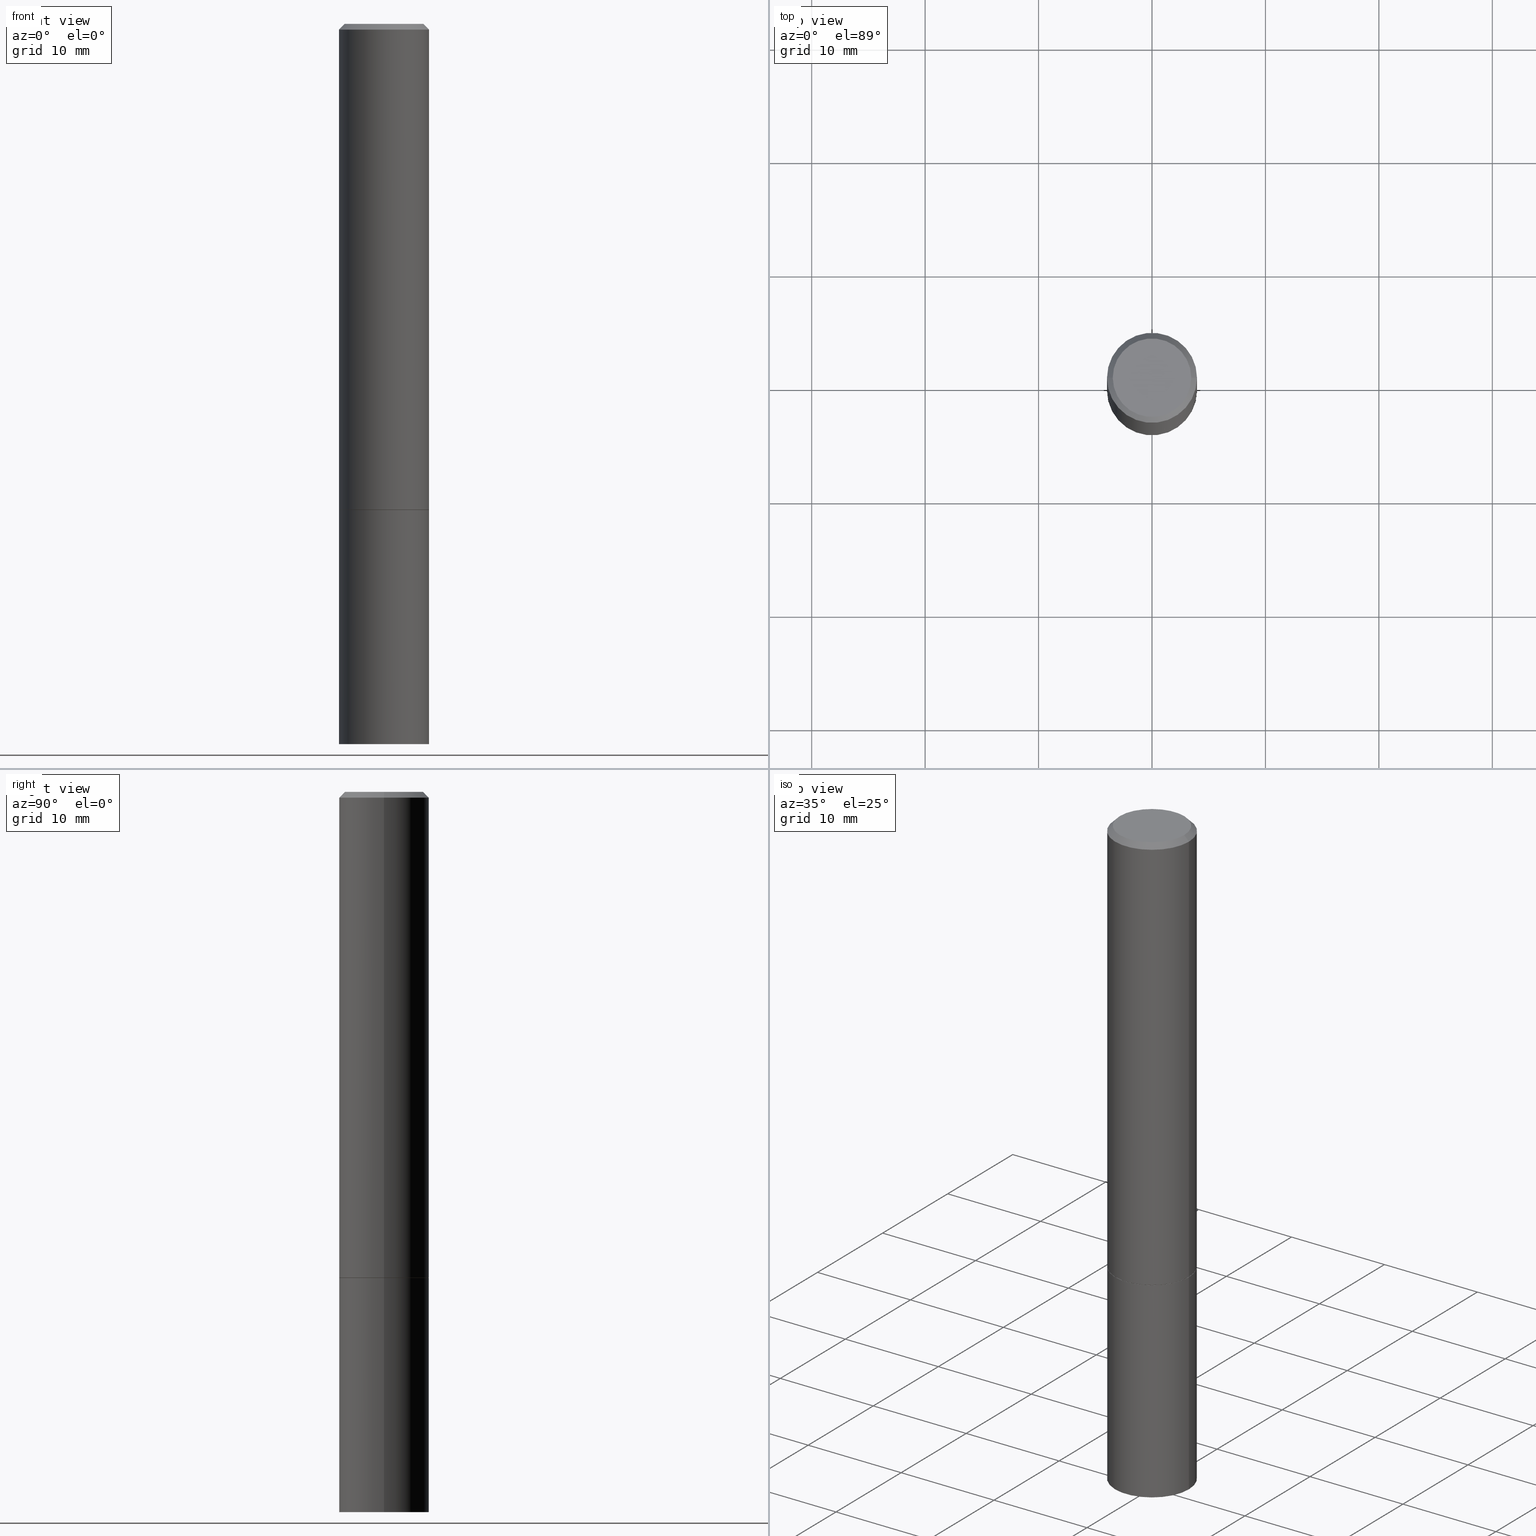
[diagram: canonical four-view strip — front | top / right | iso, engineering-drawing reading convention]
A machine part, canonical four-view strip (front | top / right | iso — engineering-drawing reading convention). The complete STEP part file that produces these views, byte-faithful:
ISO-10303-21;
HEADER;
FILE_DESCRIPTION (( 'STEP AP203' ),
    '1' );
FILE_NAME ('34623.STEP',
    '2024-02-27T16:28:29',
    ( '' ),
    ( '' ),
    'SwSTEP 2.0',
    'SolidWorks 2023',
    '' );
FILE_SCHEMA (( 'CONFIG_CONTROL_DESIGN' ));
ENDSEC;

DATA;
#1 = PLANE ( 'NONE',  #237 ) ;
#2 = CONICAL_SURFACE ( 'NONE', #49, 0.1562499999999998057, 0.7853981633974472798 ) ;
#3 = AXIS2_PLACEMENT_3D ( 'NONE', #284, #254, #226 ) ;
#4 = VERTEX_POINT ( 'NONE', #307 ) ;
#5 = CARTESIAN_POINT ( 'NONE',  ( -0.1562500000000000000, -6.200066028577678771E-15, -1.687500000000000000 ) ) ;
#6 = DATE_AND_TIME ( #28, #50 ) ;
#7 = COORDINATED_UNIVERSAL_TIME_OFFSET ( 5, 0, .BEHIND. ) ;
#8 = PERSON_AND_ORGANIZATION ( #256, #56 ) ;
#9 = ADVANCED_BREP_SHAPE_REPRESENTATION ( '34623', ( #267, #138, #89 ), #208 ) ;
#10 = PERSON_AND_ORGANIZATION_ROLE ( 'design_supplier' ) ;
#11 = DIMENSIONAL_EXPONENTS ( 1.000000000000000000, 0.000000000000000000, 0.000000000000000000, 0.000000000000000000, 0.000000000000000000, 0.000000000000000000, 0.000000000000000000 ) ;
#12 = CARTESIAN_POINT ( 'NONE',  ( 0.000000000000000000, 0.000000000000000000, 0.000000000000000000 ) ) ;
#13 = AXIS2_PLACEMENT_3D ( 'NONE', #220, #76, #190 ) ;
#14 = CARTESIAN_POINT ( 'NONE',  ( 4.890937612370281041E-31, -6.982962677686302702E-17, -0.02000000000000003511 ) ) ;
#15 = FACE_OUTER_BOUND ( 'NONE', #325, .T. ) ;
#16 = VERTEX_POINT ( 'NONE', #183 ) ;
#17 = CALENDAR_DATE ( 2024, 27, 2 ) ;
#18 = DIRECTION ( 'NONE',  ( -0.7071067811865467956, 2.468850131082249172E-15, -0.7071067811865482389 ) ) ;
#19 = DIRECTION ( 'NONE',  ( -2.445468806185136597E-29, 3.491481338843145583E-15, 1.000000000000000000 ) ) ;
#20 = CARTESIAN_POINT ( 'NONE',  ( -0.1552499999999999991, -4.788757162030252515E-15, -1.687500000000000000 ) ) ;
#21 = CIRCLE ( 'NONE', #3, 0.1362499999999998157 ) ;
#22 = LINE ( 'NONE', #20, #223 ) ;
#23 = ORIENTED_EDGE ( 'NONE', *, *, #174, .F. ) ;
#24 = ORIENTED_EDGE ( 'NONE', *, *, #174, .T. ) ;
#25 = DIRECTION ( 'NONE',  ( -2.445468806185136597E-29, 3.491481338843145583E-15, 1.000000000000000000 ) ) ;
#26 = ORIENTED_EDGE ( 'NONE', *, *, #277, .F. ) ;
#27 = ORIENTED_EDGE ( 'NONE', *, *, #34, .F. ) ;
#28 = CALENDAR_DATE ( 2024, 27, 2 ) ;
#29 = VERTEX_POINT ( 'NONE', #214 ) ;
#30 = CIRCLE ( 'NONE', #290, 0.1562500000000000000 ) ;
#31 = PLANE ( 'NONE',  #81 ) ;
#32 = PERSON_AND_ORGANIZATION_ROLE ( 'creator' ) ;
#33 = ADVANCED_FACE ( 'NONE', ( #238 ), #189, .F. ) ;
#34 = EDGE_CURVE ( 'NONE', #29, #54, #100, .T. ) ;
#35 = APPROVAL_PERSON_ORGANIZATION ( #235, #264, #288 ) ;
#36 = PERSON_AND_ORGANIZATION ( #256, #56 ) ;
#37 = CARTESIAN_POINT ( 'NONE',  ( -0.1562499999999998057, 1.021258291611614692E-15, -0.02000000000000003511 ) ) ;
#38 = CARTESIAN_POINT ( 'NONE',  ( 0.1562500000000000000, -6.979471196347444214E-15, -1.686499999999999888 ) ) ;
#39 = DIRECTION ( 'NONE',  ( -2.445468806185136597E-29, 3.491481338843145583E-15, 1.000000000000000000 ) ) ;
#40 = ORIENTED_EDGE ( 'NONE', *, *, #247, .T. ) ;
#41 = APPROVAL_ROLE ( '' ) ;
#42 = DIRECTION ( 'NONE',  ( -1.000000000000000000, 6.982962677686266711E-15, 0.000000000000000000 ) ) ;
#43 = LINE ( 'NONE', #75, #207 ) ;
#44 = ORIENTED_EDGE ( 'NONE', *, *, #250, .F. ) ;
#45 = CARTESIAN_POINT ( 'NONE',  ( -0.1562499999999998057, 1.021258291611614692E-15, -0.02000000000000003511 ) ) ;
#46 = DIRECTION ( 'NONE',  ( 1.000000000000000000, -6.982962677686269077E-15, 0.000000000000000000 ) ) ;
#47 = PRODUCT_RELATED_PRODUCT_CATEGORY ( 'detail', '', ( #234 ) ) ;
#48 = DIRECTION ( 'NONE',  ( -1.000000000000000000, 6.982962677686265922E-15, -4.876176775795935793E-29 ) ) ;
#49 = AXIS2_PLACEMENT_3D ( 'NONE', #14, #240, #42 ) ;
#50 = LOCAL_TIME ( 11, 28, 29.00000000000000000, #178 ) ;
#51 = ORIENTED_EDGE ( 'NONE', *, *, #200, .T. ) ;
#52 = EDGE_CURVE ( 'NONE', #355, #305, #340, .T. ) ;
#53 = CARTESIAN_POINT ( 'NONE',  ( -0.1562500000000000000, -6.200066028577678771E-15, -2.500000000000000000 ) ) ;
#54 = VERTEX_POINT ( 'NONE', #45 ) ;
#55 = EDGE_LOOP ( 'NONE', ( #260, #329 ) ) ;
#56 = ORGANIZATION ( 'UNSPECIFIED', 'UNSPECIFIED', '' ) ;
#57 = ORIENTED_EDGE ( 'NONE', *, *, #257, .F. ) ;
#58 = CC_DESIGN_PERSON_AND_ORGANIZATION_ASSIGNMENT ( #8, #118, ( #234 ) ) ;
#59 = DIRECTION ( 'NONE',  ( -1.000000000000000000, 6.982962677686266711E-15, 0.000000000000000000 ) ) ;
#60 = ORIENTED_EDGE ( 'NONE', *, *, #201, .F. ) ;
#61 = CIRCLE ( 'NONE', #310, 0.1562500000000000000 ) ;
#62 = LOCAL_TIME ( 11, 28, 29.00000000000000000, #157 ) ;
#63 = PERSON_AND_ORGANIZATION ( #256, #56 ) ;
#64 = VECTOR ( 'NONE', #219, 39.37007874015748143 ) ;
#65 = APPROVAL_PERSON_ORGANIZATION ( #120, #114, #41 ) ;
#66 = EDGE_CURVE ( 'NONE', #191, #54, #357, .T. ) ;
#67 = EDGE_LOOP ( 'NONE', ( #127, #175, #112, #242 ) ) ;
#68 = PERSON_AND_ORGANIZATION ( #256, #56 ) ;
#69 = ADVANCED_FACE ( 'NONE', ( #359 ), #93, .T. ) ;
#70 = CARTESIAN_POINT ( 'NONE',  ( 0.000000000000000000, 0.000000000000000000, 0.000000000000000000 ) ) ;
#71 = DIRECTION ( 'NONE',  ( 1.000000000000000000, -6.982962677686265133E-15, 4.876176775795935232E-29 ) ) ;
#72 = CIRCLE ( 'NONE', #113, 0.1562500000000000000 ) ;
#73 = AXIS2_PLACEMENT_3D ( 'NONE', #193, #25, #227 ) ;
#74 = DIRECTION ( 'NONE',  ( -2.445468806185136597E-29, 3.491481338843145583E-15, 1.000000000000000000 ) ) ;
#75 = CARTESIAN_POINT ( 'NONE',  ( 0.1552499999999999991, -6.975979715008601207E-15, -1.687500000000000000 ) ) ;
#76 = DIRECTION ( 'NONE',  ( -2.445468806185136597E-29, 3.491481338843145583E-15, 1.000000000000000000 ) ) ;
#77 = EDGE_CURVE ( 'NONE', #156, #83, #72, .T. ) ;
#78 = CARTESIAN_POINT ( 'NONE',  ( -0.1562499999999999167, 1.110223024625155949E-15, -7.685836078523285555E-30 ) ) ;
#79 = EDGE_LOOP ( 'NONE', ( #224, #230, #316, #116 ) ) ;
#80 = AXIS2_PLACEMENT_3D ( 'NONE', #303, #209, #121 ) ;
#81 = AXIS2_PLACEMENT_3D ( 'NONE', #344, #205, #346 ) ;
#82 = DIRECTION ( 'NONE',  ( -2.445468806185136877E-29, 3.491481338843145188E-15, 1.000000000000000000 ) ) ;
#83 = VERTEX_POINT ( 'NONE', #161 ) ;
#84 = CARTESIAN_POINT ( 'NONE',  ( 9.514286648347523799E-16, 0.1362499999999998157, -4.757143324173778663E-16 ) ) ;
#85 = ORIENTED_EDGE ( 'NONE', *, *, #99, .F. ) ;
#86 = MECHANICAL_CONTEXT ( 'NONE', #182, 'mechanical' ) ;
#87 = APPLICATION_PROTOCOL_DEFINITION ( 'international standard', 'config_control_design', 1994, #182 ) ;
#88 = AXIS2_PLACEMENT_3D ( 'NONE', #70, #298, #218 ) ;
#89 = AXIS2_PLACEMENT_3D ( 'NONE', #176, #115, #294 ) ;
#90 = DATE_TIME_ROLE ( 'creation_date' ) ;
#91 = ORIENTED_EDGE ( 'NONE', *, *, #52, .F. ) ;
#92 = AXIS2_PLACEMENT_3D ( 'NONE', #308, #360, #126 ) ;
#93 = CYLINDRICAL_SURFACE ( 'NONE', #88, 0.1562499999999999167 ) ;
#94 = COORDINATED_UNIVERSAL_TIME_OFFSET ( 5, 0, .BEHIND. ) ;
#95 = FACE_OUTER_BOUND ( 'NONE', #338, .T. ) ;
#96 = DATE_AND_TIME ( #351, #345 ) ;
#97 = DIRECTION ( 'NONE',  ( 1.000000000000000000, -6.982962677686269077E-15, 0.000000000000000000 ) ) ;
#98 = DIRECTION ( 'NONE',  ( 1.000000000000000000, -6.982962677686266711E-15, 4.876176775795936353E-29 ) ) ;
#99 = EDGE_CURVE ( 'NONE', #54, #191, #134, .T. ) ;
#100 = LINE ( 'NONE', #37, #295 ) ;
#101 = LINE ( 'NONE', #279, #228 ) ;
#102 = CIRCLE ( 'NONE', #314, 0.1552499999999999991 ) ;
#103 = CC_DESIGN_APPROVAL ( #169, ( #197 ) ) ;
#104 = CC_DESIGN_DATE_AND_TIME_ASSIGNMENT ( #184, #301, ( #122 ) ) ;
#105 = DIRECTION ( 'NONE',  ( -2.445468806185136597E-29, 3.491481338843145583E-15, 1.000000000000000000 ) ) ;
#106 = EDGE_LOOP ( 'NONE', ( #287, #216, #335, #110 ) ) ;
#107 = LINE ( 'NONE', #337, #181 ) ;
#108 = CLOSED_SHELL ( 'NONE', ( #117, #361, #33, #206 ) ) ;
#109 = ORIENTED_EDGE ( 'NONE', *, *, #77, .F. ) ;
#110 = ORIENTED_EDGE ( 'NONE', *, *, #137, .F. ) ;
#111 = FACE_OUTER_BOUND ( 'NONE', #255, .T. ) ;
#112 = ORIENTED_EDGE ( 'NONE', *, *, #34, .T. ) ;
#113 = AXIS2_PLACEMENT_3D ( 'NONE', #185, #327, #150 ) ;
#114 = APPROVAL ( #271, 'UNSPECIFIED' ) ;
#115 = DIRECTION ( 'NONE',  ( 0.000000000000000000, 0.000000000000000000, 1.000000000000000000 ) ) ;
#116 = ORIENTED_EDGE ( 'NONE', *, *, #297, .F. ) ;
#117 = ADVANCED_FACE ( 'NONE', ( #95 ), #125, .T. ) ;
#118 = PERSON_AND_ORGANIZATION_ROLE ( 'design_owner' ) ;
#119 = CALENDAR_DATE ( 2024, 27, 2 ) ;
#120 = PERSON_AND_ORGANIZATION ( #256, #56 ) ;
#121 = DIRECTION ( 'NONE',  ( 1.000000000000000000, -6.982962677686265133E-15, 0.000000000000000000 ) ) ;
#122 = SECURITY_CLASSIFICATION ( '', '', #330 ) ;
#123 = FACE_OUTER_BOUND ( 'NONE', #79, .T. ) ;
#124 = EDGE_LOOP ( 'NONE', ( #23, #44 ) ) ;
#125 = CYLINDRICAL_SURFACE ( 'NONE', #160, 0.1562500000000000000 ) ;
#126 = DIRECTION ( 'NONE',  ( 1.000000000000000000, -6.982962677686268288E-15, 0.000000000000000000 ) ) ;
#127 = ORIENTED_EDGE ( 'NONE', *, *, #200, .F. ) ;
#128 = DATE_AND_TIME ( #17, #62 ) ;
#129 = ADVANCED_FACE ( 'NONE', ( #155 ), #2, .T. ) ;
#130 = DIRECTION ( 'NONE',  ( -0.7071067811865232589, 7.493145998870265808E-15, 0.7071067811865715536 ) ) ;
#131 = AXIS2_PLACEMENT_3D ( 'NONE', #141, #258, #59 ) ;
#132 = CARTESIAN_POINT ( 'NONE',  ( 0.1562499999999998057, -1.141782438928663330E-15, -0.02000000000000003511 ) ) ;
#133 = ORIENTED_EDGE ( 'NONE', *, *, #262, .F. ) ;
#134 = CIRCLE ( 'NONE', #80, 0.1562499999999998057 ) ;
#135 = DIRECTION ( 'NONE',  ( -2.445468806185136877E-29, 3.491481338843145188E-15, 1.000000000000000000 ) ) ;
#136 = ORIENTED_EDGE ( 'NONE', *, *, #250, .T. ) ;
#137 = EDGE_CURVE ( 'NONE', #365, #16, #153, .T. ) ;
#138 = MANIFOLD_SOLID_BREP ( 'Body-Move/Copy2[2]', #192 ) ;
#139 = VERTEX_POINT ( 'NONE', #273 ) ;
#140 = FACE_OUTER_BOUND ( 'NONE', #124, .T. ) ;
#141 = CARTESIAN_POINT ( 'NONE',  ( 4.890937612370281041E-31, -6.982962677686302702E-17, -0.02000000000000003511 ) ) ;
#142 = ORIENTED_EDGE ( 'NONE', *, *, #212, .F. ) ;
#143 = AXIS2_PLACEMENT_3D ( 'NONE', #251, #19, #188 ) ;
#144 = CARTESIAN_POINT ( 'NONE',  ( 4.126728610437418007E-29, -5.891874759297807259E-15, -1.687500000000000000 ) ) ;
#145 =( LENGTH_UNIT ( ) NAMED_UNIT ( * ) SI_UNIT ( $, .METRE. ) );
#146 = CARTESIAN_POINT ( 'NONE',  ( -0.1562500000000000000, 1.110223024625156540E-15, -7.685836078523291160E-30 ) ) ;
#147 = APPROVAL_STATUS ( 'not_yet_approved' ) ;
#148 = PERSON_AND_ORGANIZATION_ROLE ( 'classification_officer' ) ;
#149 = EDGE_CURVE ( 'NONE', #305, #365, #249, .T. ) ;
#150 = DIRECTION ( 'NONE',  ( 1.000000000000000000, -6.982962677686269077E-15, 0.000000000000000000 ) ) ;
#151 = CYLINDRICAL_SURFACE ( 'NONE', #364, 0.1562500000000000000 ) ;
#152 = APPROVAL_DATE_TIME ( #96, #169 ) ;
#153 = CIRCLE ( 'NONE', #180, 0.1562500000000000000 ) ;
#154 = APPROVAL_PERSON_ORGANIZATION ( #326, #169, #300 ) ;
#155 = FACE_OUTER_BOUND ( 'NONE', #67, .T. ) ;
#156 = VERTEX_POINT ( 'NONE', #38 ) ;
#157 = COORDINATED_UNIVERSAL_TIME_OFFSET ( 5, 0, .BEHIND. ) ;
#158 = CARTESIAN_POINT ( 'NONE',  ( 4.126728610437418007E-29, -5.891874759297807259E-15, -1.687500000000000000 ) ) ;
#159 = DIRECTION ( 'NONE',  ( 0.7071067811865232589, -2.468850131082003836E-15, 0.7071067811865715536 ) ) ;
#160 = AXIS2_PLACEMENT_3D ( 'NONE', #211, #39, #269 ) ;
#161 = CARTESIAN_POINT ( 'NONE',  ( -0.1562500000000000000, -1.868883427742755657E-15, -1.686499999999999888 ) ) ;
#162 = DIRECTION ( 'NONE',  ( -2.445468806185136597E-29, 3.491481338843145583E-15, 1.000000000000000000 ) ) ;
#163 = CONICAL_SURFACE ( 'NONE', #73, 0.1552499999999999991, 0.7853981633974141952 ) ;
#164 = VERTEX_POINT ( 'NONE', #245 ) ;
#165 = ADVANCED_FACE ( 'NONE', ( #123 ), #215, .T. ) ;
#166 = ORIENTED_EDGE ( 'NONE', *, *, #149, .T. ) ;
#167 = LINE ( 'NONE', #195, #332 ) ;
#168 = AXIS2_PLACEMENT_3D ( 'NONE', #12, #105, #304 ) ;
#169 = APPROVAL ( #179, 'UNSPECIFIED' ) ;
#170 = DIRECTION ( 'NONE',  ( -2.445468806185136597E-29, 3.491481338843145583E-15, 1.000000000000000000 ) ) ;
#171 = ADVANCED_FACE ( 'NONE', ( #15 ), #259, .T. ) ;
#172 = EDGE_LOOP ( 'NONE', ( #142, #51, #229, #27 ) ) ;
#173 = UNCERTAINTY_MEASURE_WITH_UNIT (LENGTH_MEASURE( 1.000000000000000082E-05 ), #198, 'distance_accuracy_value', 'NONE');
#174 = EDGE_CURVE ( 'NONE', #164, #4, #102, .T. ) ;
#175 = ORIENTED_EDGE ( 'NONE', *, *, #342, .F. ) ;
#176 = CARTESIAN_POINT ( 'NONE',  ( 0.000000000000000000, 0.000000000000000000, 0.000000000000000000 ) ) ;
#177 = DESIGN_CONTEXT ( 'detailed design', #199, 'design' ) ;
#178 = COORDINATED_UNIVERSAL_TIME_OFFSET ( 5, 0, .BEHIND. ) ;
#179 = APPROVAL_STATUS ( 'not_yet_approved' ) ;
#180 = AXIS2_PLACEMENT_3D ( 'NONE', #158, #353, #97 ) ;
#181 = VECTOR ( 'NONE', #135, 39.37007874015748143 ) ;
#182 = APPLICATION_CONTEXT ( 'configuration controlled 3d designs of mechanical parts and assemblies' ) ;
#183 = CARTESIAN_POINT ( 'NONE',  ( 0.1562500000000000000, -6.982962677686287221E-15, -1.687500000000000000 ) ) ;
#184 = DATE_AND_TIME ( #210, #285 ) ;
#185 = CARTESIAN_POINT ( 'NONE',  ( 4.124283141631232404E-29, -5.888383277958965040E-15, -1.686499999999999888 ) ) ;
#186 = DIRECTION ( 'NONE',  ( 1.000000000000000000, -6.982962677686268288E-15, 0.000000000000000000 ) ) ;
#187 = DIRECTION ( 'NONE',  ( 1.000000000000000000, -6.982962677686269077E-15, 0.000000000000000000 ) ) ;
#188 = DIRECTION ( 'NONE',  ( 1.000000000000000000, -6.982962677686268288E-15, 0.000000000000000000 ) ) ;
#189 = PLANE ( 'NONE',  #253 ) ;
#190 = DIRECTION ( 'NONE',  ( 1.000000000000000000, -6.982962677686269077E-15, 0.000000000000000000 ) ) ;
#191 = VERTEX_POINT ( 'NONE', #132 ) ;
#192 = CLOSED_SHELL ( 'NONE', ( #171, #165, #328, #129, #69, #318, #352, #348 ) ) ;
#193 = CARTESIAN_POINT ( 'NONE',  ( 4.126728610437418007E-29, -5.891874759297807259E-15, -1.687500000000000000 ) ) ;
#194 = ORIENTED_EDGE ( 'NONE', *, *, #247, .F. ) ;
#195 = CARTESIAN_POINT ( 'NONE',  ( 0.1562499999999999167, -1.091087918388478385E-15, 7.619026212181144772E-30 ) ) ;
#196 = FACE_OUTER_BOUND ( 'NONE', #319, .T. ) ;
#197 = PRODUCT_DEFINITION_FORMATION_WITH_SPECIFIED_SOURCE ( 'ANY', '', #234, .NOT_KNOWN. ) ;
#198 =( CONVERSION_BASED_UNIT ( 'INCH', #343 ) LENGTH_UNIT ( ) NAMED_UNIT ( #11 ) );
#199 = APPLICATION_CONTEXT ( 'configuration controlled 3d designs of mechanical parts and assemblies' ) ;
#200 = EDGE_CURVE ( 'NONE', #139, #191, #101, .T. ) ;
#201 = EDGE_CURVE ( 'NONE', #83, #54, #221, .T. ) ;
#202 = FACE_OUTER_BOUND ( 'NONE', #339, .T. ) ;
#203 = CIRCLE ( 'NONE', #13, 0.1562500000000000000 ) ;
#204 = DIRECTION ( 'NONE',  ( 1.000000000000000000, -6.982962677686265922E-15, 4.876176775795935793E-29 ) ) ;
#205 = DIRECTION ( 'NONE',  ( 2.438088387897960049E-29, -3.491481338843145188E-15, -1.000000000000000000 ) ) ;
#206 = ADVANCED_FACE ( 'NONE', ( #333 ), #151, .T. ) ;
#207 = VECTOR ( 'NONE', #159, 39.37007874015748854 ) ;
#208 =( GEOMETRIC_REPRESENTATION_CONTEXT ( 3 ) GLOBAL_UNCERTAINTY_ASSIGNED_CONTEXT ( ( #173 ) ) GLOBAL_UNIT_ASSIGNED_CONTEXT ( ( #198, #321, #317 ) ) REPRESENTATION_CONTEXT ( 'NONE', 'WORKASPACE' ) );
#209 = DIRECTION ( 'NONE',  ( -2.445468806185136597E-29, 3.491481338843145583E-15, 1.000000000000000000 ) ) ;
#210 = CALENDAR_DATE ( 2024, 27, 2 ) ;
#211 = CARTESIAN_POINT ( 'NONE',  ( 0.000000000000000000, 0.000000000000000000, 0.000000000000000000 ) ) ;
#212 = EDGE_CURVE ( 'NONE', #139, #29, #322, .T. ) ;
#213 = PERSON_AND_ORGANIZATION_ROLE ( 'creator' ) ;
#214 = CARTESIAN_POINT ( 'NONE',  ( -0.1362499999999998157, 9.863434782231836346E-16, -6.775751096333130074E-30 ) ) ;
#215 = CYLINDRICAL_SURFACE ( 'NONE', #283, 0.1562499999999999167 ) ;
#216 = ORIENTED_EDGE ( 'NONE', *, *, #257, .T. ) ;
#217 = AXIS2_PLACEMENT_3D ( 'NONE', #84, #265, #320 ) ;
#218 = DIRECTION ( 'NONE',  ( 1.000000000000000000, -6.982962677686265133E-15, 4.876176775795935232E-29 ) ) ;
#219 = DIRECTION ( 'NONE',  ( -2.445468806185136877E-29, 3.491481338843145188E-15, 1.000000000000000000 ) ) ;
#220 = CARTESIAN_POINT ( 'NONE',  ( 4.126728610437418007E-29, -5.891874759297807259E-15, -1.687500000000000000 ) ) ;
#221 = LINE ( 'NONE', #78, #64 ) ;
#222 = ORIENTED_EDGE ( 'NONE', *, *, #263, .F. ) ;
#223 = VECTOR ( 'NONE', #130, 39.37007874015748854 ) ;
#224 = ORIENTED_EDGE ( 'NONE', *, *, #77, .T. ) ;
#225 = ORIENTED_EDGE ( 'NONE', *, *, #212, .T. ) ;
#226 = DIRECTION ( 'NONE',  ( 1.000000000000000000, -6.982962677686266711E-15, 4.876176775795935232E-29 ) ) ;
#227 = DIRECTION ( 'NONE',  ( 1.000000000000000000, -6.982962677686268288E-15, 0.000000000000000000 ) ) ;
#228 = VECTOR ( 'NONE', #354, 39.37007874015748143 ) ;
#229 = ORIENTED_EDGE ( 'NONE', *, *, #66, .T. ) ;
#230 = ORIENTED_EDGE ( 'NONE', *, *, #201, .T. ) ;
#231 = ORIENTED_EDGE ( 'NONE', *, *, #262, .T. ) ;
#232 = DATE_AND_TIME ( #119, #266 ) ;
#233 = CC_DESIGN_APPROVAL ( #264, ( #293 ) ) ;
#234 = PRODUCT ( '34623', '34623', '', ( #86 ) ) ;
#235 = PERSON_AND_ORGANIZATION ( #256, #56 ) ;
#236 = CARTESIAN_POINT ( 'NONE',  ( 4.890937612370281041E-31, -6.982962677686302702E-17, -0.02000000000000003511 ) ) ;
#237 = AXIS2_PLACEMENT_3D ( 'NONE', #144, #261, #204 ) ;
#238 = FACE_OUTER_BOUND ( 'NONE', #55, .T. ) ;
#239 = CARTESIAN_POINT ( 'NONE',  ( 0.000000000000000000, 0.000000000000000000, 0.000000000000000000 ) ) ;
#240 = DIRECTION ( 'NONE',  ( 2.445468806185136597E-29, -3.491481338843145583E-15, -1.000000000000000000 ) ) ;
#241 = CARTESIAN_POINT ( 'NONE',  ( 4.126728610437418007E-29, -5.891874759297807259E-15, -1.687500000000000000 ) ) ;
#242 = ORIENTED_EDGE ( 'NONE', *, *, #99, .T. ) ;
#243 = SHAPE_DEFINITION_REPRESENTATION ( #281, #9 ) ;
#244 = CARTESIAN_POINT ( 'NONE',  ( 6.113672015462842613E-29, -8.728703347107864943E-15, -2.500000000000000000 ) ) ;
#245 = CARTESIAN_POINT ( 'NONE',  ( 0.1552499999999999991, -6.975979715008601207E-15, -1.687500000000000000 ) ) ;
#246 = CC_DESIGN_PERSON_AND_ORGANIZATION_ASSIGNMENT ( #68, #148, ( #122 ) ) ;
#247 = EDGE_CURVE ( 'NONE', #164, #156, #43, .T. ) ;
#248 = DIRECTION ( 'NONE',  ( 1.000000000000000000, -6.982962677686265133E-15, 0.000000000000000000 ) ) ;
#249 = LINE ( 'NONE', #146, #350 ) ;
#250 = EDGE_CURVE ( 'NONE', #4, #164, #309, .T. ) ;
#251 = CARTESIAN_POINT ( 'NONE',  ( 4.126728610437418007E-29, -5.891874759297807259E-15, -1.687500000000000000 ) ) ;
#252 = ORIENTED_EDGE ( 'NONE', *, *, #280, .F. ) ;
#253 = AXIS2_PLACEMENT_3D ( 'NONE', #349, #278, #48 ) ;
#254 = DIRECTION ( 'NONE',  ( -2.445468806185136597E-29, 3.491481338843145583E-15, 1.000000000000000000 ) ) ;
#255 = EDGE_LOOP ( 'NONE', ( #133, #136, #40, #26 ) ) ;
#256 = PERSON ( 'UNSPECIFIED', 'UNSPECIFIED', 'UNSPECIFIED', ('UNSPECIFIED'), ('UNSPECIFIED'), ('UNSPECIFIED') ) ;
#257 = EDGE_CURVE ( 'NONE', #305, #355, #30, .T. ) ;
#258 = DIRECTION ( 'NONE',  ( 2.445468806185136597E-29, -3.491481338843145583E-15, -1.000000000000000000 ) ) ;
#259 = CONICAL_SURFACE ( 'NONE', #92, 0.1552499999999999991, 0.7853981633974141952 ) ;
#260 = ORIENTED_EDGE ( 'NONE', *, *, #263, .T. ) ;
#261 = DIRECTION ( 'NONE',  ( -2.438088387897960049E-29, 3.491481338843145188E-15, 1.000000000000000000 ) ) ;
#262 = EDGE_CURVE ( 'NONE', #4, #83, #22, .T. ) ;
#263 = EDGE_CURVE ( 'NONE', #16, #365, #203, .T. ) ;
#264 = APPROVAL ( #147, 'UNSPECIFIED' ) ;
#265 = DIRECTION ( 'NONE',  ( 2.438088387897960049E-29, -3.491481338843145188E-15, -1.000000000000000000 ) ) ;
#266 = LOCAL_TIME ( 11, 28, 29.00000000000000000, #7 ) ;
#267 = MANIFOLD_SOLID_BREP ( 'Body-Move/Copy2[1]', #108 ) ;
#268 = DIRECTION ( 'NONE',  ( -2.445468806185136597E-29, 3.491481338843145583E-15, 1.000000000000000000 ) ) ;
#269 = DIRECTION ( 'NONE',  ( 1.000000000000000000, -6.982962677686266711E-15, 4.876176775795936353E-29 ) ) ;
#270 = ORIENTED_EDGE ( 'NONE', *, *, #297, .T. ) ;
#271 = APPROVAL_STATUS ( 'not_yet_approved' ) ;
#272 = CC_DESIGN_PERSON_AND_ORGANIZATION_ASSIGNMENT ( #296, #213, ( #197 ) ) ;
#273 = CARTESIAN_POINT ( 'NONE',  ( 0.1362499999999998157, -1.038262645562516744E-15, 6.957025900226686667E-30 ) ) ;
#274 = DIRECTION ( 'NONE',  ( -2.445468806185136597E-29, 3.491481338843145583E-15, 1.000000000000000000 ) ) ;
#275 = APPROVAL_DATE_TIME ( #128, #114 ) ;
#276 = DIRECTION ( 'NONE',  ( -2.445468806185136597E-29, 3.491481338843145583E-15, 1.000000000000000000 ) ) ;
#277 = EDGE_CURVE ( 'NONE', #83, #156, #61, .T. ) ;
#278 = DIRECTION ( 'NONE',  ( 2.438088387897960049E-29, -3.491481338843145188E-15, -1.000000000000000000 ) ) ;
#279 = CARTESIAN_POINT ( 'NONE',  ( 0.1562499999999998057, -1.141782438928663330E-15, -0.02000000000000003511 ) ) ;
#280 = EDGE_CURVE ( 'NONE', #355, #16, #107, .T. ) ;
#281 = PRODUCT_DEFINITION_SHAPE ( 'NONE', 'NONE',  #293 ) ;
#282 = ORIENTED_EDGE ( 'NONE', *, *, #342, .T. ) ;
#283 = AXIS2_PLACEMENT_3D ( 'NONE', #239, #276, #71 ) ;
#284 = CARTESIAN_POINT ( 'NONE',  ( 0.000000000000000000, 0.000000000000000000, 0.000000000000000000 ) ) ;
#285 = LOCAL_TIME ( 11, 28, 29.00000000000000000, #94 ) ;
#286 = CC_DESIGN_DATE_AND_TIME_ASSIGNMENT ( #232, #90, ( #293 ) ) ;
#287 = ORIENTED_EDGE ( 'NONE', *, *, #149, .F. ) ;
#288 = APPROVAL_ROLE ( '' ) ;
#289 = EDGE_LOOP ( 'NONE', ( #60, #363, #270, #85 ) ) ;
#290 = AXIS2_PLACEMENT_3D ( 'NONE', #306, #162, #46 ) ;
#291 = CC_DESIGN_APPROVAL ( #114, ( #122 ) ) ;
#292 = APPLICATION_PROTOCOL_DEFINITION ( 'international standard', 'config_control_design', 1994, #199 ) ;
#293 = PRODUCT_DEFINITION ( 'UNKNOWN', '', #197, #177 ) ;
#294 = DIRECTION ( 'NONE',  ( 1.000000000000000000, 0.000000000000000000, 0.000000000000000000 ) ) ;
#295 = VECTOR ( 'NONE', #18, 39.37007874015748143 ) ;
#296 = PERSON_AND_ORGANIZATION ( #256, #56 ) ;
#297 = EDGE_CURVE ( 'NONE', #156, #191, #167, .T. ) ;
#298 = DIRECTION ( 'NONE',  ( -2.445468806185136597E-29, 3.491481338843145583E-15, 1.000000000000000000 ) ) ;
#299 = CARTESIAN_POINT ( 'NONE',  ( 0.000000000000000000, 0.000000000000000000, 0.000000000000000000 ) ) ;
#300 = APPROVAL_ROLE ( '' ) ;
#301 = DATE_TIME_ROLE ( 'classification_date' ) ;
#302 = AXIS2_PLACEMENT_3D ( 'NONE', #236, #331, #248 ) ;
#303 = CARTESIAN_POINT ( 'NONE',  ( 4.890937612370281041E-31, -6.982962677686302702E-17, -0.02000000000000003511 ) ) ;
#304 = DIRECTION ( 'NONE',  ( 1.000000000000000000, -6.982962677686266711E-15, 4.876176775795935232E-29 ) ) ;
#305 = VERTEX_POINT ( 'NONE', #53 ) ;
#306 = CARTESIAN_POINT ( 'NONE',  ( 6.113672015462842613E-29, -8.728703347107864943E-15, -2.500000000000000000 ) ) ;
#307 = CARTESIAN_POINT ( 'NONE',  ( -0.1552499999999999991, -4.783458707682030113E-15, -1.687500000000000000 ) ) ;
#308 = CARTESIAN_POINT ( 'NONE',  ( 4.126728610437418007E-29, -5.891874759297807259E-15, -1.687500000000000000 ) ) ;
#309 = CIRCLE ( 'NONE', #143, 0.1552499999999999991 ) ;
#310 = AXIS2_PLACEMENT_3D ( 'NONE', #311, #170, #366 ) ;
#311 = CARTESIAN_POINT ( 'NONE',  ( 4.124283141631232404E-29, -5.888383277958965040E-15, -1.686499999999999888 ) ) ;
#312 = ORIENTED_EDGE ( 'NONE', *, *, #52, .T. ) ;
#313 = CC_DESIGN_PERSON_AND_ORGANIZATION_ASSIGNMENT ( #36, #10, ( #197 ) ) ;
#314 = AXIS2_PLACEMENT_3D ( 'NONE', #241, #274, #186 ) ;
#315 = PLANE ( 'NONE',  #217 ) ;
#316 = ORIENTED_EDGE ( 'NONE', *, *, #66, .F. ) ;
#317 =( NAMED_UNIT ( * ) SI_UNIT ( $, .STERADIAN. ) SOLID_ANGLE_UNIT ( ) );
#318 = ADVANCED_FACE ( 'NONE', ( #111 ), #163, .T. ) ;
#319 = EDGE_LOOP ( 'NONE', ( #282, #225 ) ) ;
#320 = DIRECTION ( 'NONE',  ( -1.000000000000000000, 6.982962677686265922E-15, -4.876176775795935793E-29 ) ) ;
#321 =( NAMED_UNIT ( * ) PLANE_ANGLE_UNIT ( ) SI_UNIT ( $, .RADIAN. ) );
#322 = CIRCLE ( 'NONE', #168, 0.1362499999999998157 ) ;
#323 = CONICAL_SURFACE ( 'NONE', #131, 0.1562499999999998057, 0.7853981633974472798 ) ;
#324 = APPROVAL_DATE_TIME ( #6, #264 ) ;
#325 = EDGE_LOOP ( 'NONE', ( #24, #231, #109, #194 ) ) ;
#326 = PERSON_AND_ORGANIZATION ( #256, #56 ) ;
#327 = DIRECTION ( 'NONE',  ( -2.445468806185136597E-29, 3.491481338843145583E-15, 1.000000000000000000 ) ) ;
#328 = ADVANCED_FACE ( 'NONE', ( #341 ), #323, .T. ) ;
#329 = ORIENTED_EDGE ( 'NONE', *, *, #137, .T. ) ;
#330 = SECURITY_CLASSIFICATION_LEVEL ( 'unclassified' ) ;
#331 = DIRECTION ( 'NONE',  ( -2.445468806185136597E-29, 3.491481338843145583E-15, 1.000000000000000000 ) ) ;
#332 = VECTOR ( 'NONE', #82, 39.37007874015748143 ) ;
#333 = FACE_OUTER_BOUND ( 'NONE', #106, .T. ) ;
#334 = CC_DESIGN_PERSON_AND_ORGANIZATION_ASSIGNMENT ( #63, #32, ( #293 ) ) ;
#335 = ORIENTED_EDGE ( 'NONE', *, *, #280, .T. ) ;
#336 = AXIS2_PLACEMENT_3D ( 'NONE', #244, #74, #187 ) ;
#337 = CARTESIAN_POINT ( 'NONE',  ( 0.1562500000000000000, -1.091087918388479174E-15, 7.619026212181150377E-30 ) ) ;
#338 = EDGE_LOOP ( 'NONE', ( #312, #166, #222, #252 ) ) ;
#339 = EDGE_LOOP ( 'NONE', ( #91, #57 ) ) ;
#340 = CIRCLE ( 'NONE', #336, 0.1562500000000000000 ) ;
#341 = FACE_OUTER_BOUND ( 'NONE', #172, .T. ) ;
#342 = EDGE_CURVE ( 'NONE', #29, #139, #21, .T. ) ;
#343 = LENGTH_MEASURE_WITH_UNIT ( LENGTH_MEASURE( 0.02539999999999999897 ), #145 );
#344 = CARTESIAN_POINT ( 'NONE',  ( 1.091087918388540310E-15, 0.1562499999999912570, -2.500000000000000444 ) ) ;
#345 = LOCAL_TIME ( 11, 28, 29.00000000000000000, #356 ) ;
#346 = DIRECTION ( 'NONE',  ( -1.000000000000000000, 6.982962677686265922E-15, -4.876176775795935793E-29 ) ) ;
#347 = CARTESIAN_POINT ( 'NONE',  ( 0.1562500000000000000, -9.819791265496344905E-15, -2.500000000000000000 ) ) ;
#348 = ADVANCED_FACE ( 'NONE', ( #196 ), #315, .F. ) ;
#349 = CARTESIAN_POINT ( 'NONE',  ( 1.091087918388520392E-15, 0.1562499999999940881, -1.687500000000000444 ) ) ;
#350 = VECTOR ( 'NONE', #362, 39.37007874015748143 ) ;
#351 = CALENDAR_DATE ( 2024, 27, 2 ) ;
#352 = ADVANCED_FACE ( 'NONE', ( #140 ), #1, .F. ) ;
#353 = DIRECTION ( 'NONE',  ( -2.445468806185136597E-29, 3.491481338843145583E-15, 1.000000000000000000 ) ) ;
#354 = DIRECTION ( 'NONE',  ( 0.7071067811865467956, -7.319954787623254468E-15, -0.7071067811865482389 ) ) ;
#355 = VERTEX_POINT ( 'NONE', #347 ) ;
#356 = COORDINATED_UNIVERSAL_TIME_OFFSET ( 5, 0, .BEHIND. ) ;
#357 = CIRCLE ( 'NONE', #302, 0.1562499999999998057 ) ;
#358 = CC_DESIGN_SECURITY_CLASSIFICATION ( #122, ( #197 ) ) ;
#359 = FACE_OUTER_BOUND ( 'NONE', #289, .T. ) ;
#360 = DIRECTION ( 'NONE',  ( -2.445468806185136597E-29, 3.491481338843145583E-15, 1.000000000000000000 ) ) ;
#361 = ADVANCED_FACE ( 'NONE', ( #202 ), #31, .T. ) ;
#362 = DIRECTION ( 'NONE',  ( -2.445468806185136877E-29, 3.491481338843145188E-15, 1.000000000000000000 ) ) ;
#363 = ORIENTED_EDGE ( 'NONE', *, *, #277, .T. ) ;
#364 = AXIS2_PLACEMENT_3D ( 'NONE', #299, #268, #98 ) ;
#365 = VERTEX_POINT ( 'NONE', #5 ) ;
#366 = DIRECTION ( 'NONE',  ( 1.000000000000000000, -6.982962677686269077E-15, 0.000000000000000000 ) ) ;
ENDSEC;
END-ISO-10303-21;
